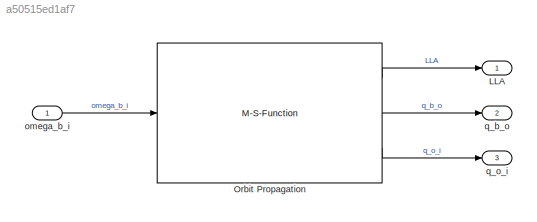
MODEL slx_a50515ed1af7
KIND model
CONFIG AbsTol = auto
CONFIG EnableMultiTasking = off
CONFIG FixedStep = auto
CONFIG MaxStep = auto
CONFIG MinStep = auto
CONFIG RelTol = 1e-7
CONFIG SampleTimeConstraint = Unconstrained
CONFIG Solver = ode45
CONFIG SolverName = ode45
CONFIG StartTime = 0.0
CONFIG StopTime = 1000
BLOCK [Outport] LLA
  IconDisplay = Port number
  OutDataTypeStr = double
  PortDimensions = 3
  SampleTime = 0
  SamplingMode = Sample based
  SignalType = real
BLOCK [M-S-Function] Orbit Propagation
  FunctionName = OrbitSfun
  Parameters = x_orbit_init,omega_orbit
  Ports = [1, 3]
BLOCK [Inport] omega_b_i
  IconDisplay = Port number
  OutDataTypeStr = double
  PortDimensions = 3
  SampleTime = 0
  SamplingMode = Sample based
  SignalType = real
BLOCK [Outport] q_b_o
  IconDisplay = Port number
  OutDataTypeStr = double
  Port = 2
  PortDimensions = 4
  SampleTime = 0
  SamplingMode = Sample based
  SignalType = real
BLOCK [Outport] q_o_i
  IconDisplay = Port number
  OutDataTypeStr = double
  Port = 3
  PortDimensions = 4
  SampleTime = 0
  SamplingMode = Sample based
  SignalType = real
LINE Orbit Propagation:1 -> LLA:1
LINE Orbit Propagation:2 -> q_b_o:1
LINE Orbit Propagation:3 -> q_o_i:1
LINE omega_b_i:1 -> Orbit Propagation:1
